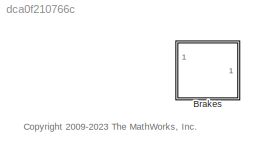
MODEL slx_dca0f210766c
KIND library
CONFIG AbsTol = auto
CONFIG EnableMultiTasking = on
CONFIG FixedStep = auto
CONFIG MaxStep = auto
CONFIG MinStep = auto
CONFIG RelTol = 1e-3
CONFIG SampleTimeConstraint = Unconstrained
CONFIG SolverName = ode45
CONFIG StartTime = 0.0
CONFIG StopTime = 10.0
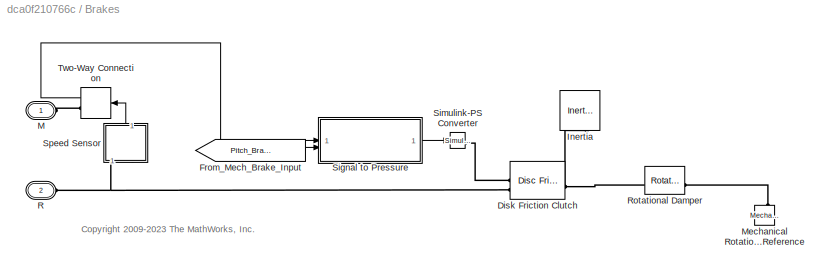
BLOCK [SubSystem] Brakes
BLOCK [Reference] Brakes/Disk Friction Clutch  REF=sdl_lib/Clutches/Disc Friction Clutch
  SourceBlock = sdl_lib/Clutches/Disc Friction Clutch
  SourceType = Disc Friction Clutch
BLOCK [From] Brakes/From_Mech_Brake_Input
  CloseFcn = tagdialog Close
  GotoTag = Pitch_Brake
BLOCK [Reference] Brakes/Inertia  REF=fl_lib/Mechanical/Rotational Elements/Inertia
  NameLocation = left
  SourceBlock = fl_lib/Mechanical/Rotational Elements/Inertia
  SourceType = Inertia
BLOCK [PMIOPort] Brakes/M
  Side = Left
  Tag = PMCPort
BLOCK [Reference] Brakes/Mechanical Rotational Reference  REF=fl_lib/Mechanical/Rotational Elements/Mechanical
Rotational Reference
  NameLocation = right
  SourceBlock = fl_lib/Mechanical/Rotational Elements/Mechanical\nRotational Reference
  SourceType = Mechanical\nRotational Reference
BLOCK [PMIOPort] Brakes/R
  Port = 2
  Side = Left
  Tag = PMCPort
BLOCK [Reference] Brakes/Rotational Damper  REF=fl_lib/Mechanical/Rotational Elements/Rotational Damper
  SourceBlock = fl_lib/Mechanical/Rotational Elements/Rotational Damper
  SourceType = Rotational Damper
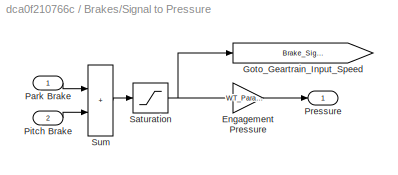
BLOCK [SubSystem] Brakes/Signal to Pressure
BLOCK [Gain] Brakes/Signal to Pressure/Engagement Pressure
  Gain = WT_Params.Brakes.threshold_pressure*4
BLOCK [Goto] Brakes/Signal to Pressure/Goto_Geartrain_Input_Speed
  GotoTag = Brake_Signal
  TagVisibility = global
BLOCK [Inport] Brakes/Signal to Pressure/Park Brake
BLOCK [Inport] Brakes/Signal to Pressure/Pitch Brake
  Port = 2
BLOCK [Outport] Brakes/Signal to Pressure/Pressure
  VectorParamsAs1DForOutWhenUnconnected = off
BLOCK [Saturate] Brakes/Signal to Pressure/Saturation
  LowerLimit = 0
  UpperLimit = 1
  ZeroCross = off
BLOCK [Sum] Brakes/Signal to Pressure/Sum
  IconShape = rectangular
BLOCK [Reference] Brakes/Simulink-PS Converter  REF=nesl_utility/Simulink-PS
Converter
  SourceBlock = nesl_utility/Simulink-PS\nConverter
  SourceType = Simulink-PS\nConverter
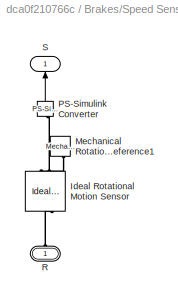
BLOCK [SubSystem] Brakes/Speed Sensor
  NameLocation = right
BLOCK [Reference] Brakes/Speed Sensor/Ideal Rotational Motion Sensor  REF=fl_lib/Mechanical/Mechanical Sensors/Ideal Rotational
Motion Sensor
  NameLocation = right
  SourceBlock = fl_lib/Mechanical/Mechanical Sensors/Ideal Rotational\nMotion Sensor
  SourceType = Ideal Rotational\nMotion Sensor
BLOCK [Reference] Brakes/Speed Sensor/Mechanical Rotational Reference1  REF=fl_lib/Mechanical/Rotational Elements/Mechanical
Rotational Reference
  NameLocation = left
  SourceBlock = fl_lib/Mechanical/Rotational Elements/Mechanical\nRotational Reference
  SourceType = Mechanical\nRotational Reference
BLOCK [Reference] Brakes/Speed Sensor/PS-Simulink Converter  REF=nesl_utility/PS-Simulink
Converter
  NameLocation = left
  SourceBlock = nesl_utility/PS-Simulink\nConverter
  SourceType = PS-Simulink\nConverter
BLOCK [PMIOPort] Brakes/Speed Sensor/R
  NameLocation = left
  Side = Left
BLOCK [Outport] Brakes/Speed Sensor/S
  NameLocation = right
  VectorParamsAs1DForOutWhenUnconnected = off
BLOCK [TwoWayConnection] Brakes/Two-Way Connection
  NameLocation = top
ANNOTATION (root): <copyright redacted>
ANNOTATION Brakes: <copyright redacted>
LINE Brakes/From_Mech_Brake_Input:1 -> Brakes/Signal to Pressure:2
LINE Brakes/Signal to Pressure/Engagement Pressure:1 -> Brakes/Signal to Pressure/Pressure:1
LINE Brakes/Signal to Pressure/Park Brake:1 -> Brakes/Signal to Pressure/Sum:1
LINE Brakes/Signal to Pressure/Pitch Brake:1 -> Brakes/Signal to Pressure/Sum:2
NET Brakes/Signal to Pressure/Saturation:1 -> Brakes/Signal to Pressure/Engagement Pressure:1, Brakes/Signal to Pressure/Goto_Geartrain_Input_Speed:1
LINE Brakes/Signal to Pressure/Sum:1 -> Brakes/Signal to Pressure/Saturation:1
LINE Brakes/Signal to Pressure:1 -> Brakes/Simulink-PS Converter:1
LINE Brakes/Speed Sensor/PS-Simulink Converter:1 -> Brakes/Speed Sensor/S:1
LINE Brakes/Speed Sensor:1 -> Brakes/Two-Way Connection:1
LINE Brakes/Two-Way Connection:1 -> Brakes/Signal to Pressure:1
PLINE Brakes/Disk Friction Clutch:LConn1 -- Brakes/Simulink-PS Converter:RConn1
PNET net1: Brakes/Disk Friction Clutch:LConn2 -- Brakes/R:RConn1 -- Brakes/Speed Sensor:LConn1
PNET net2: Brakes/Disk Friction Clutch:RConn1 -- Brakes/Inertia:LConn1 -- Brakes/Rotational Damper:LConn1
PLINE Brakes/M:RConn1 -- Brakes/Two-Way Connection:RConn1
PLINE Brakes/Mechanical Rotational Reference:LConn1 -- Brakes/Rotational Damper:RConn1
PLINE Brakes/Speed Sensor/Ideal Rotational Motion Sensor:LConn1 -- Brakes/Speed Sensor/R:RConn1
PLINE Brakes/Speed Sensor/Ideal Rotational Motion Sensor:RConn1 -- Brakes/Speed Sensor/Mechanical Rotational Reference1:LConn1
PLINE Brakes/Speed Sensor/Ideal Rotational Motion Sensor:RConn2 -- Brakes/Speed Sensor/PS-Simulink Converter:LConn1
note: NET lines group one-source signal fan-out (src -> all destinations, sorted); 1:1 wires keep LINE; PNET lines group multi-terminal physical nets as a canonical sorted terminal list (undirected conserving connections); 2-terminal nets keep the pairwise PLINE form
